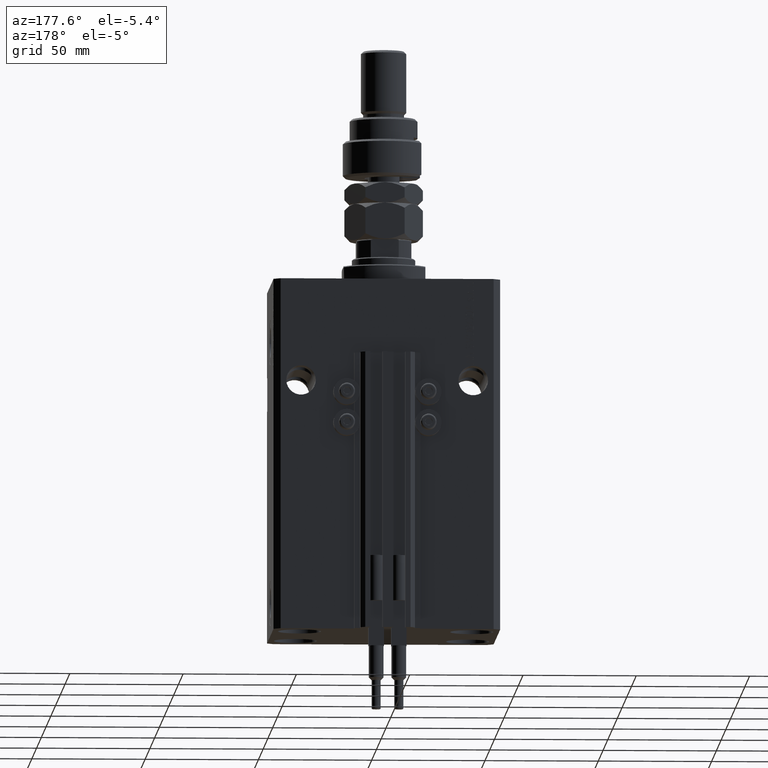
[diagram: clean part render]
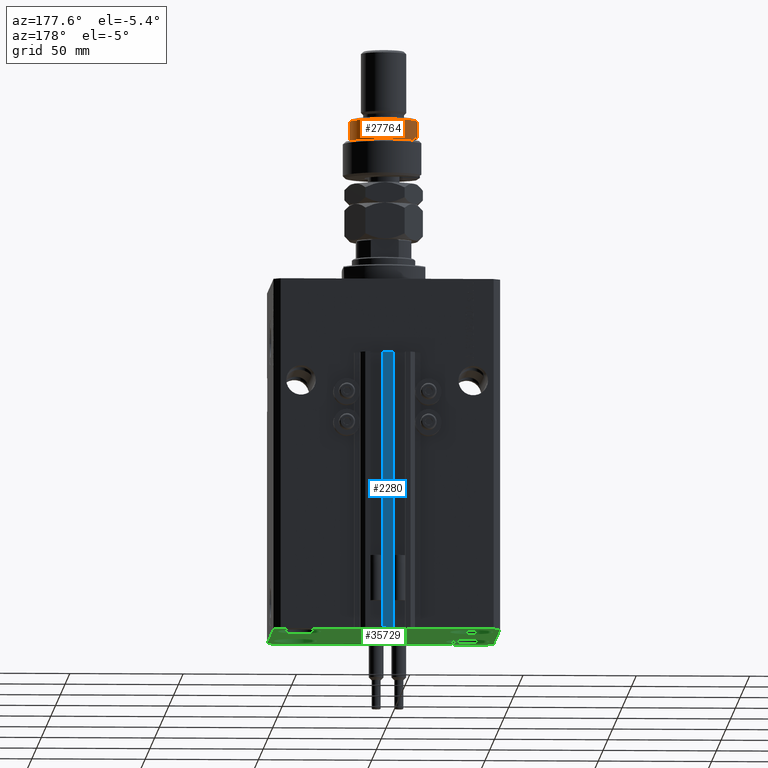
[diagram: same view with three faces highlighted in distinct colors, each labeled with its STEP entity id]
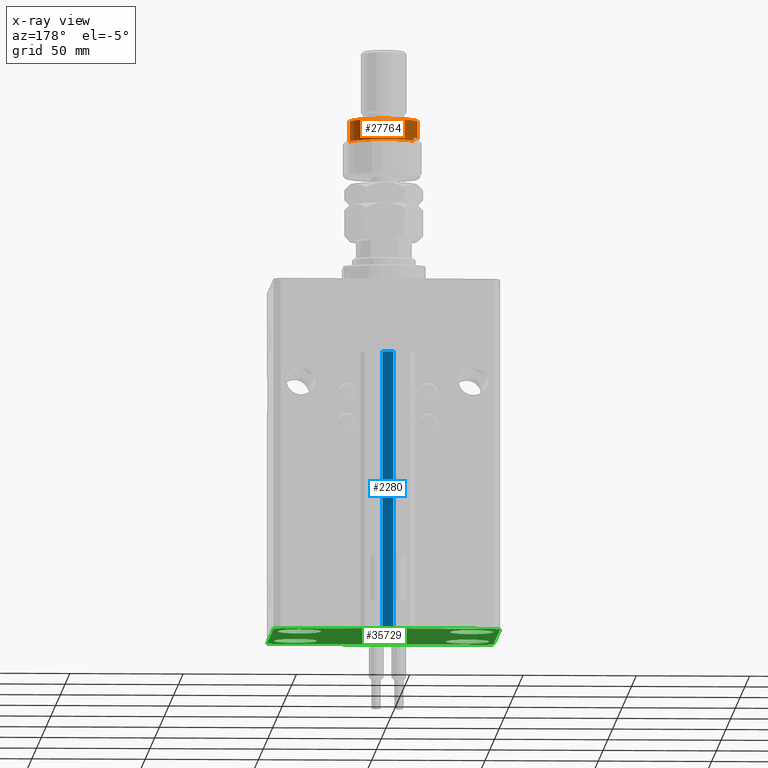
[diagram: x-ray of the same camera — body ghosted, the three highlighted faces saturated]
A machine part, auxiliary view with three faces highlighted in distinct colors.
The next image is the same camera in x-ray (body ghosted, the three faces saturated) — at least one of them is partly hidden behind the body in this view.
Their STEP definitions:

[orange] entity #27764 — the highlighted cylindrical surface (edge-blend (fillet) strip) has radius 15 mm, axis along (-0, -0, -1).
#346 = DIRECTION ( 'NONE',  ( -1.000000000000000000, 0.000000000000000000, 0.000000000000000000 ) ) ;
#483 = DIRECTION ( 'NONE',  ( -0.000000000000000000, -0.000000000000000000, -1.000000000000000000 ) ) ;
#1284 = CARTESIAN_POINT ( 'NONE',  ( -12.99038105676658006, 7.500000000000000000, 17.50000000000000000 ) ) ;
#2516 = LINE ( 'NONE', #33722, #23870 ) ;
#3872 = VERTEX_POINT ( 'NONE', #44724 ) ;
#4805 = DIRECTION ( 'NONE',  ( -0.000000000000000000, -0.000000000000000000, -1.000000000000000000 ) ) ;
#5315 = FACE_OUTER_BOUND ( 'NONE', #35118, .T. ) ;
#5394 = VERTEX_POINT ( 'NONE', #31712 ) ;
#6120 = EDGE_CURVE ( 'NONE', #3872, #5394, #2516, .T. ) ;
#9772 = CARTESIAN_POINT ( 'NONE',  ( 0.000000000000000000, 0.000000000000000000, 16.00000000000000000 ) ) ;
#10063 = CARTESIAN_POINT ( 'NONE',  ( 15.00000000000000000, 1.836970198721029589E-15, 16.00000000000000000 ) ) ;
#10752 = EDGE_CURVE ( 'NONE', #3872, #28986, #28939, .T. ) ;
#11365 = AXIS2_PLACEMENT_3D ( 'NONE', #30833, #20051, #11675 ) ;
#11675 = DIRECTION ( 'NONE',  ( 1.000000000000000000, 0.000000000000000000, 0.000000000000000000 ) ) ;
#11886 = ORIENTED_EDGE ( 'NONE', *, *, #46749, .T. ) ;
#13201 = DIRECTION ( 'NONE',  ( 1.000000000000000000, 0.000000000000000000, 0.000000000000000000 ) ) ;
#13914 = EDGE_CURVE ( 'NONE', #25998, #43163, #33245, .T. ) ;
#14204 = CIRCLE ( 'NONE', #50210, 15.00000000000000000 ) ;
#15678 = AXIS2_PLACEMENT_3D ( 'NONE', #9772, #25516, #13201 ) ;
#16603 = CARTESIAN_POINT ( 'NONE',  ( 0.000000000000000000, 0.000000000000000000, 26.00000000000000355 ) ) ;
#18259 = LINE ( 'NONE', #46317, #23260 ) ;
#19014 = CARTESIAN_POINT ( 'NONE',  ( 0.000000000000000000, 0.000000000000000000, 17.50000000000000000 ) ) ;
#20051 = DIRECTION ( 'NONE',  ( 0.000000000000000000, 0.000000000000000000, -1.000000000000000000 ) ) ;
#23260 = VECTOR ( 'NONE', #41343, 1000.000000000000000 ) ;
#23416 = VERTEX_POINT ( 'NONE', #1284 ) ;
#23870 = VECTOR ( 'NONE', #41849, 1000.000000000000000 ) ;
#25516 = DIRECTION ( 'NONE',  ( 0.000000000000000000, 0.000000000000000000, 1.000000000000000000 ) ) ;
#25998 = VERTEX_POINT ( 'NONE', #10063 ) ;
#27764 = ADVANCED_FACE ( 'NONE', ( #5315 ), #36263, .T. ) ;
#27904 = DIRECTION ( 'NONE',  ( 0.000000000000000000, 0.000000000000000000, -1.000000000000000000 ) ) ;
#28278 = CARTESIAN_POINT ( 'NONE',  ( 15.00000000000000000, 1.836970198721029589E-15, 26.00000000000000355 ) ) ;
#28939 = CIRCLE ( 'NONE', #11365, 15.00000000000000000 ) ;
#28986 = VERTEX_POINT ( 'NONE', #47698 ) ;
#30235 = ORIENTED_EDGE ( 'NONE', *, *, #47945, .F. ) ;
#30448 = EDGE_CURVE ( 'NONE', #43163, #23416, #18259, .T. ) ;
#30833 = CARTESIAN_POINT ( 'NONE',  ( 0.000000000000000000, 0.000000000000000000, 24.99999999999997868 ) ) ;
#31712 = CARTESIAN_POINT ( 'NONE',  ( -15.00000000000000000, 0.000000000000000000, 17.50000000000000000 ) ) ;
#33245 = CIRCLE ( 'NONE', #15678, 15.00000000000000000 ) ;
#33722 = CARTESIAN_POINT ( 'NONE',  ( -15.00000000000000000, 0.000000000000000000, 26.00000000000000355 ) ) ;
#35118 = EDGE_LOOP ( 'NONE', ( #48963, #11886, #36633, #47854, #30235, #47649 ) ) ;
#35762 = DIRECTION ( 'NONE',  ( -1.000000000000000000, 0.000000000000000000, 0.000000000000000000 ) ) ;
#36263 = CYLINDRICAL_SURFACE ( 'NONE', #41544, 15.00000000000000000 ) ;
#36417 = VECTOR ( 'NONE', #483, 1000.000000000000000 ) ;
#36633 = ORIENTED_EDGE ( 'NONE', *, *, #13914, .T. ) ;
#41343 = DIRECTION ( 'NONE',  ( 0.000000000000000000, 0.000000000000000000, 1.000000000000000000 ) ) ;
#41544 = AXIS2_PLACEMENT_3D ( 'NONE', #16603, #4805, #346 ) ;
#41849 = DIRECTION ( 'NONE',  ( -0.000000000000000000, -0.000000000000000000, -1.000000000000000000 ) ) ;
#43163 = VERTEX_POINT ( 'NONE', #47531 ) ;
#44724 = CARTESIAN_POINT ( 'NONE',  ( -15.00000000000000000, 0.000000000000000000, 24.99999999999997868 ) ) ;
#46317 = CARTESIAN_POINT ( 'NONE',  ( -12.99038105676658006, 7.500000000000000000, 26.00000000000000355 ) ) ;
#46749 = EDGE_CURVE ( 'NONE', #28986, #25998, #48204, .T. ) ;
#47531 = CARTESIAN_POINT ( 'NONE',  ( -12.99038105676658006, 7.500000000000000000, 16.00000000000000000 ) ) ;
#47649 = ORIENTED_EDGE ( 'NONE', *, *, #6120, .F. ) ;
#47698 = CARTESIAN_POINT ( 'NONE',  ( 15.00000000000000000, 1.836970198721029589E-15, 24.99999999999997868 ) ) ;
#47854 = ORIENTED_EDGE ( 'NONE', *, *, #30448, .T. ) ;
#47945 = EDGE_CURVE ( 'NONE', #5394, #23416, #14204, .T. ) ;
#48204 = LINE ( 'NONE', #28278, #36417 ) ;
#48963 = ORIENTED_EDGE ( 'NONE', *, *, #10752, .T. ) ;
#50210 = AXIS2_PLACEMENT_3D ( 'NONE', #19014, #27904, #35762 ) ;

[blue] entity #2280 — the highlighted planar face has unit normal (0, -1, 0).
#217 = VECTOR ( 'NONE', #3693, 1000.000000000000000 ) ;
#1138 = PLANE ( 'NONE',  #12827 ) ;
#2114 = VECTOR ( 'NONE', #10321, 1000.000000000000000 ) ;
#2280 = ADVANCED_FACE ( 'NONE', ( #49386 ), #1138, .F. ) ;
#2876 = VECTOR ( 'NONE', #15545, 1000.000000000000000 ) ;
#2965 = ORIENTED_EDGE ( 'NONE', *, *, #7192, .T. ) ;
#3693 = DIRECTION ( 'NONE',  ( 0.000000000000000000, 0.000000000000000000, 1.000000000000000000 ) ) ;
#4813 = ORIENTED_EDGE ( 'NONE', *, *, #5031, .T. ) ;
#5031 = EDGE_CURVE ( 'NONE', #11559, #12353, #39907, .T. ) ;
#6653 = CARTESIAN_POINT ( 'NONE',  ( -2.350000000000003642, 45.50000000000000711, -33.00000000000000000 ) ) ;
#7192 = EDGE_CURVE ( 'NONE', #12353, #51010, #26578, .T. ) ;
#10321 = DIRECTION ( 'NONE',  ( 1.000000000000000000, 0.000000000000000000, 0.000000000000000000 ) ) ;
#10383 = VERTEX_POINT ( 'NONE', #32181 ) ;
#10480 = CARTESIAN_POINT ( 'NONE',  ( 2.349999999999999645, 45.50000000000000711, -33.00000000000000000 ) ) ;
#11559 = VERTEX_POINT ( 'NONE', #44950 ) ;
#12353 = VERTEX_POINT ( 'NONE', #18544 ) ;
#12434 = CARTESIAN_POINT ( 'NONE',  ( -2.350000000000003642, 45.50000000000000711, -155.0000000000000000 ) ) ;
#12827 = AXIS2_PLACEMENT_3D ( 'NONE', #12434, #32608, #32869 ) ;
#15545 = DIRECTION ( 'NONE',  ( 0.000000000000000000, 0.000000000000000000, 1.000000000000000000 ) ) ;
#18544 = CARTESIAN_POINT ( 'NONE',  ( -2.350000000000003642, 45.50000000000000711, -33.00000000000000000 ) ) ;
#22478 = LINE ( 'NONE', #26151, #26724 ) ;
#26151 = CARTESIAN_POINT ( 'NONE',  ( -2.350000000000003642, 45.50000000000000711, -155.0000000000000000 ) ) ;
#26578 = LINE ( 'NONE', #6653, #2114 ) ;
#26724 = VECTOR ( 'NONE', #46588, 1000.000000000000000 ) ;
#32181 = CARTESIAN_POINT ( 'NONE',  ( 2.349999999999999645, 45.50000000000000711, -155.0000000000000000 ) ) ;
#32608 = DIRECTION ( 'NONE',  ( 0.000000000000000000, -1.000000000000000000, 0.000000000000000000 ) ) ;
#32869 = DIRECTION ( 'NONE',  ( 0.000000000000000000, -0.000000000000000000, -1.000000000000000000 ) ) ;
#33253 = EDGE_CURVE ( 'NONE', #11559, #10383, #22478, .T. ) ;
#35960 = CARTESIAN_POINT ( 'NONE',  ( -2.350000000000003642, 45.50000000000000711, -155.0000000000000000 ) ) ;
#39907 = LINE ( 'NONE', #35960, #2876 ) ;
#43352 = EDGE_CURVE ( 'NONE', #10383, #51010, #43534, .T. ) ;
#43534 = LINE ( 'NONE', #44565, #217 ) ;
#44565 = CARTESIAN_POINT ( 'NONE',  ( 2.349999999999999645, 45.50000000000000711, -155.0000000000000000 ) ) ;
#44950 = CARTESIAN_POINT ( 'NONE',  ( -2.350000000000003642, 45.50000000000000711, -155.0000000000000000 ) ) ;
#46588 = DIRECTION ( 'NONE',  ( 1.000000000000000000, 0.000000000000000000, 0.000000000000000000 ) ) ;
#48931 = ORIENTED_EDGE ( 'NONE', *, *, #33253, .F. ) ;
#49386 = FACE_OUTER_BOUND ( 'NONE', #49933, .T. ) ;
#49570 = ORIENTED_EDGE ( 'NONE', *, *, #43352, .F. ) ;
#49933 = EDGE_LOOP ( 'NONE', ( #2965, #49570, #48931, #4813 ) ) ;
#51010 = VERTEX_POINT ( 'NONE', #10480 ) ;

[green] entity #35729 — the highlighted planar face has unit normal (0, 0, 1).
#248 = CIRCLE ( 'NONE', #36242, 9.500000000000001776 ) ;
#529 = CARTESIAN_POINT ( 'NONE',  ( -47.00000000000001421, 37.50000000000000000, -155.0000000000000000 ) ) ;
#696 = ORIENTED_EDGE ( 'NONE', *, *, #28960, .T. ) ;
#735 = LINE ( 'NONE', #13585, #23960 ) ;
#920 = CIRCLE ( 'NONE', #36931, 9.500000000000001776 ) ;
#1127 = ORIENTED_EDGE ( 'NONE', *, *, #2640, .T. ) ;
#1382 = DIRECTION ( 'NONE',  ( 0.7071067811865483499, 0.7071067811865466846, 0.000000000000000000 ) ) ;
#1840 = VERTEX_POINT ( 'NONE', #20107 ) ;
#2631 = VECTOR ( 'NONE', #1382, 1000.000000000000000 ) ;
#2640 = EDGE_CURVE ( 'NONE', #36526, #47503, #248, .T. ) ;
#2663 = CARTESIAN_POINT ( 'NONE',  ( -47.50000000000000711, 22.50000000000000000, -155.0000000000000000 ) ) ;
#2719 = CARTESIAN_POINT ( 'NONE',  ( 47.00000000000056843, 37.49999999999999289, -155.0000000000000000 ) ) ;
#2890 = ORIENTED_EDGE ( 'NONE', *, *, #27782, .F. ) ;
#2893 = DIRECTION ( 'NONE',  ( -0.000000000000000000, -0.000000000000000000, 1.000000000000000000 ) ) ;
#3088 = CIRCLE ( 'NONE', #20704, 9.500000000000001776 ) ;
#3404 = DIRECTION ( 'NONE',  ( -0.7071067811865361374, 0.7071067811865588970, 0.000000000000000000 ) ) ;
#3567 = FACE_BOUND ( 'NONE', #16726, .T. ) ;
#3874 = DIRECTION ( 'NONE',  ( 1.000000000000000000, 0.000000000000000000, 0.000000000000000000 ) ) ;
#3990 = EDGE_LOOP ( 'NONE', ( #6063, #47883 ) ) ;
#4102 = DIRECTION ( 'NONE',  ( 1.000000000000000000, -1.476360405086644309E-16, 0.000000000000000000 ) ) ;
#4883 = VECTOR ( 'NONE', #4102, 1000.000000000000000 ) ;
#5085 = CIRCLE ( 'NONE', #13478, 9.500000000000001776 ) ;
#5633 = ORIENTED_EDGE ( 'NONE', *, *, #8929, .F. ) ;
#5951 = CARTESIAN_POINT ( 'NONE',  ( 28.50000000000000355, -22.50000000000000000, -155.0000000000000000 ) ) ;
#6063 = ORIENTED_EDGE ( 'NONE', *, *, #37173, .T. ) ;
#6788 = VERTEX_POINT ( 'NONE', #5951 ) ;
#6893 = CARTESIAN_POINT ( 'NONE',  ( -38.00000000000000711, 22.50000000000000000, -155.0000000000000000 ) ) ;
#7670 = DIRECTION ( 'NONE',  ( 1.000000000000000000, 0.000000000000000000, 0.000000000000000000 ) ) ;
#7741 = DIRECTION ( 'NONE',  ( 1.000000000000000000, 0.000000000000000000, 0.000000000000000000 ) ) ;
#8136 = ORIENTED_EDGE ( 'NONE', *, *, #10567, .F. ) ;
#8172 = CARTESIAN_POINT ( 'NONE',  ( -38.00000000000000711, 22.50000000000000000, -155.0000000000000000 ) ) ;
#8929 = EDGE_CURVE ( 'NONE', #34600, #29745, #21895, .T. ) ;
#9635 = VECTOR ( 'NONE', #36892, 1000.000000000000114 ) ;
#10567 = EDGE_CURVE ( 'NONE', #29745, #17352, #16970, .T. ) ;
#10919 = PLANE ( 'NONE',  #13439 ) ;
#12358 = CARTESIAN_POINT ( 'NONE',  ( -28.50000000000000355, 22.50000000000000000, -155.0000000000000000 ) ) ;
#12591 = DIRECTION ( 'NONE',  ( -0.7071067811865483499, -0.7071067811865466846, 0.000000000000000000 ) ) ;
#13439 = AXIS2_PLACEMENT_3D ( 'NONE', #42385, #39481, #22728 ) ;
#13478 = AXIS2_PLACEMENT_3D ( 'NONE', #48778, #17312, #29887 ) ;
#13515 = CARTESIAN_POINT ( 'NONE',  ( -50.00000000000001421, 34.50000000000000000, -155.0000000000000000 ) ) ;
#13532 = EDGE_LOOP ( 'NONE', ( #29641, #696 ) ) ;
#13585 = CARTESIAN_POINT ( 'NONE',  ( 50.00000000000000000, -34.50000000000000711, -155.0000000000000000 ) ) ;
#13652 = ORIENTED_EDGE ( 'NONE', *, *, #16483, .F. ) ;
#14733 = ORIENTED_EDGE ( 'NONE', *, *, #48294, .T. ) ;
#15262 = CARTESIAN_POINT ( 'NONE',  ( 47.50000000000000711, 22.50000000000001421, -155.0000000000000000 ) ) ;
#15919 = CARTESIAN_POINT ( 'NONE',  ( 38.00000000000000711, 22.50000000000001421, -155.0000000000000000 ) ) ;
#16483 = EDGE_CURVE ( 'NONE', #17352, #43303, #20615, .T. ) ;
#16726 = EDGE_LOOP ( 'NONE', ( #17408, #36494 ) ) ;
#16970 = LINE ( 'NONE', #24846, #9635 ) ;
#17312 = DIRECTION ( 'NONE',  ( -0.000000000000000000, -0.000000000000000000, 1.000000000000000000 ) ) ;
#17352 = VERTEX_POINT ( 'NONE', #45568 ) ;
#17408 = ORIENTED_EDGE ( 'NONE', *, *, #37397, .T. ) ;
#17901 = CARTESIAN_POINT ( 'NONE',  ( 47.00000000000000000, -37.50000000000000711, -155.0000000000000000 ) ) ;
#18268 = VECTOR ( 'NONE', #12591, 1000.000000000000000 ) ;
#18711 = EDGE_LOOP ( 'NONE', ( #1127, #14733 ) ) ;
#18878 = CARTESIAN_POINT ( 'NONE',  ( 50.00000000000051870, 34.49999999999995026, -155.0000000000000000 ) ) ;
#18956 = DIRECTION ( 'NONE',  ( -0.000000000000000000, -0.000000000000000000, 1.000000000000000000 ) ) ;
#19144 = DIRECTION ( 'NONE',  ( 1.000000000000000000, 0.000000000000000000, 0.000000000000000000 ) ) ;
#19385 = AXIS2_PLACEMENT_3D ( 'NONE', #19795, #43652, #7741 ) ;
#19795 = CARTESIAN_POINT ( 'NONE',  ( 38.00000000000000711, -22.50000000000000000, -155.0000000000000000 ) ) ;
#20107 = CARTESIAN_POINT ( 'NONE',  ( -28.50000000000000355, -22.50000000000000000, -155.0000000000000000 ) ) ;
#20615 = LINE ( 'NONE', #36600, #4883 ) ;
#20704 = AXIS2_PLACEMENT_3D ( 'NONE', #51636, #2893, #19144 ) ;
#21607 = CARTESIAN_POINT ( 'NONE',  ( -50.00000000000000000, -34.50000000000000000, -155.0000000000000000 ) ) ;
#21765 = CARTESIAN_POINT ( 'NONE',  ( 28.50000000000000355, 22.50000000000001421, -155.0000000000000000 ) ) ;
#21895 = LINE ( 'NONE', #13515, #45600 ) ;
#22091 = VERTEX_POINT ( 'NONE', #42289 ) ;
#22728 = DIRECTION ( 'NONE',  ( 1.000000000000000000, 0.000000000000000000, -0.000000000000000000 ) ) ;
#23479 = ORIENTED_EDGE ( 'NONE', *, *, #31187, .F. ) ;
#23960 = VECTOR ( 'NONE', #48972, 1000.000000000000000 ) ;
#24511 = ORIENTED_EDGE ( 'NONE', *, *, #35030, .F. ) ;
#24846 = CARTESIAN_POINT ( 'NONE',  ( -50.00000000000000000, -34.50000000000000000, -155.0000000000000000 ) ) ;
#24914 = CARTESIAN_POINT ( 'NONE',  ( -47.50000000000000711, -22.50000000000000000, -155.0000000000000000 ) ) ;
#26400 = FACE_BOUND ( 'NONE', #3990, .T. ) ;
#26533 = CARTESIAN_POINT ( 'NONE',  ( 38.00000000000000711, 22.50000000000001421, -155.0000000000000000 ) ) ;
#26807 = AXIS2_PLACEMENT_3D ( 'NONE', #8172, #49055, #32538 ) ;
#27041 = CARTESIAN_POINT ( 'NONE',  ( 47.00000000000000000, -37.50000000000000711, -155.0000000000000000 ) ) ;
#27195 = DIRECTION ( 'NONE',  ( -0.000000000000000000, -0.000000000000000000, 1.000000000000000000 ) ) ;
#27328 = EDGE_CURVE ( 'NONE', #46038, #48654, #735, .T. ) ;
#27334 = VECTOR ( 'NONE', #37046, 1000.000000000000000 ) ;
#27782 = EDGE_CURVE ( 'NONE', #37926, #50846, #44386, .T. ) ;
#28186 = EDGE_CURVE ( 'NONE', #37199, #46556, #43271, .T. ) ;
#28503 = CARTESIAN_POINT ( 'NONE',  ( -38.00000000000000711, -22.50000000000000000, -155.0000000000000000 ) ) ;
#28960 = EDGE_CURVE ( 'NONE', #22091, #6788, #3088, .T. ) ;
#29641 = ORIENTED_EDGE ( 'NONE', *, *, #41839, .T. ) ;
#29745 = VERTEX_POINT ( 'NONE', #21607 ) ;
#29887 = DIRECTION ( 'NONE',  ( 1.000000000000000000, 0.000000000000000000, 0.000000000000000000 ) ) ;
#30977 = DIRECTION ( 'NONE',  ( 1.000000000000000000, 0.000000000000000000, 0.000000000000000000 ) ) ;
#31066 = AXIS2_PLACEMENT_3D ( 'NONE', #26533, #43293, #30977 ) ;
#31187 = EDGE_CURVE ( 'NONE', #50846, #34600, #44049, .T. ) ;
#32538 = DIRECTION ( 'NONE',  ( 1.000000000000000000, 0.000000000000000000, 0.000000000000000000 ) ) ;
#33110 = LINE ( 'NONE', #17901, #2631 ) ;
#34460 = CIRCLE ( 'NONE', #19385, 9.500000000000001776 ) ;
#34600 = VERTEX_POINT ( 'NONE', #49110 ) ;
#34942 = CARTESIAN_POINT ( 'NONE',  ( 50.00000000000000000, -34.50000000000000711, -155.0000000000000000 ) ) ;
#35030 = EDGE_CURVE ( 'NONE', #48654, #37926, #46925, .T. ) ;
#35729 = ADVANCED_FACE ( 'NONE', ( #3567, #43409, #26400, #51033, #47605 ), #10919, .F. ) ;
#35990 = VECTOR ( 'NONE', #3404, 1000.000000000000114 ) ;
#36242 = AXIS2_PLACEMENT_3D ( 'NONE', #6893, #18956, #7670 ) ;
#36494 = ORIENTED_EDGE ( 'NONE', *, *, #41540, .T. ) ;
#36526 = VERTEX_POINT ( 'NONE', #2663 ) ;
#36600 = CARTESIAN_POINT ( 'NONE',  ( -47.00000000000000000, -37.49999999999999289, -155.0000000000000000 ) ) ;
#36892 = DIRECTION ( 'NONE',  ( 0.7071067811865491270, -0.7071067811865459074, 0.000000000000000000 ) ) ;
#36931 = AXIS2_PLACEMENT_3D ( 'NONE', #28503, #39786, #3874 ) ;
#37046 = DIRECTION ( 'NONE',  ( -1.000000000000000000, 7.381802025433175941E-17, 0.000000000000000000 ) ) ;
#37173 = EDGE_CURVE ( 'NONE', #46556, #37199, #51168, .T. ) ;
#37199 = VERTEX_POINT ( 'NONE', #15262 ) ;
#37397 = EDGE_CURVE ( 'NONE', #43496, #1840, #5085, .T. ) ;
#37889 = DIRECTION ( 'NONE',  ( 2.011273595335428326E-16, -1.000000000000000000, 0.000000000000000000 ) ) ;
#37926 = VERTEX_POINT ( 'NONE', #2719 ) ;
#39481 = DIRECTION ( 'NONE',  ( 0.000000000000000000, 0.000000000000000000, 1.000000000000000000 ) ) ;
#39786 = DIRECTION ( 'NONE',  ( -0.000000000000000000, -0.000000000000000000, 1.000000000000000000 ) ) ;
#40141 = CARTESIAN_POINT ( 'NONE',  ( -47.00000000000001421, 37.50000000000000000, -155.0000000000000000 ) ) ;
#40611 = CARTESIAN_POINT ( 'NONE',  ( 50.00000000000051870, 34.49999999999995026, -155.0000000000000000 ) ) ;
#41231 = CARTESIAN_POINT ( 'NONE',  ( 47.00000000000056843, 37.49999999999999289, -155.0000000000000000 ) ) ;
#41540 = EDGE_CURVE ( 'NONE', #1840, #43496, #920, .T. ) ;
#41839 = EDGE_CURVE ( 'NONE', #6788, #22091, #34460, .T. ) ;
#42289 = CARTESIAN_POINT ( 'NONE',  ( 47.50000000000000711, -22.50000000000000000, -155.0000000000000000 ) ) ;
#42385 = CARTESIAN_POINT ( 'NONE',  ( 0.000000000000000000, 0.000000000000000000, -155.0000000000000000 ) ) ;
#42704 = CIRCLE ( 'NONE', #26807, 9.500000000000001776 ) ;
#43183 = DIRECTION ( 'NONE',  ( 1.000000000000000000, 0.000000000000000000, 0.000000000000000000 ) ) ;
#43271 = CIRCLE ( 'NONE', #49982, 9.500000000000001776 ) ;
#43293 = DIRECTION ( 'NONE',  ( -0.000000000000000000, -0.000000000000000000, 1.000000000000000000 ) ) ;
#43303 = VERTEX_POINT ( 'NONE', #27041 ) ;
#43409 = FACE_BOUND ( 'NONE', #13532, .T. ) ;
#43496 = VERTEX_POINT ( 'NONE', #24914 ) ;
#43652 = DIRECTION ( 'NONE',  ( -0.000000000000000000, -0.000000000000000000, 1.000000000000000000 ) ) ;
#44049 = LINE ( 'NONE', #529, #18268 ) ;
#44386 = LINE ( 'NONE', #41231, #27334 ) ;
#45568 = CARTESIAN_POINT ( 'NONE',  ( -47.00000000000000000, -37.49999999999999289, -155.0000000000000000 ) ) ;
#45600 = VECTOR ( 'NONE', #37889, 1000.000000000000000 ) ;
#46038 = VERTEX_POINT ( 'NONE', #34942 ) ;
#46556 = VERTEX_POINT ( 'NONE', #21765 ) ;
#46925 = LINE ( 'NONE', #18878, #35990 ) ;
#47503 = VERTEX_POINT ( 'NONE', #12358 ) ;
#47605 = FACE_OUTER_BOUND ( 'NONE', #48393, .T. ) ;
#47883 = ORIENTED_EDGE ( 'NONE', *, *, #28186, .T. ) ;
#48294 = EDGE_CURVE ( 'NONE', #47503, #36526, #42704, .T. ) ;
#48393 = EDGE_LOOP ( 'NONE', ( #2890, #24511, #49896, #49749, #13652, #8136, #5633, #23479 ) ) ;
#48654 = VERTEX_POINT ( 'NONE', #40611 ) ;
#48778 = CARTESIAN_POINT ( 'NONE',  ( -38.00000000000000711, -22.50000000000000000, -155.0000000000000000 ) ) ;
#48972 = DIRECTION ( 'NONE',  ( 7.441712302741091634E-15, 1.000000000000000000, 0.000000000000000000 ) ) ;
#49055 = DIRECTION ( 'NONE',  ( -0.000000000000000000, -0.000000000000000000, 1.000000000000000000 ) ) ;
#49110 = CARTESIAN_POINT ( 'NONE',  ( -50.00000000000001421, 34.50000000000000000, -155.0000000000000000 ) ) ;
#49749 = ORIENTED_EDGE ( 'NONE', *, *, #51782, .F. ) ;
#49896 = ORIENTED_EDGE ( 'NONE', *, *, #27328, .F. ) ;
#49982 = AXIS2_PLACEMENT_3D ( 'NONE', #15919, #27195, #43183 ) ;
#50846 = VERTEX_POINT ( 'NONE', #40141 ) ;
#51033 = FACE_BOUND ( 'NONE', #18711, .T. ) ;
#51168 = CIRCLE ( 'NONE', #31066, 9.500000000000001776 ) ;
#51636 = CARTESIAN_POINT ( 'NONE',  ( 38.00000000000000711, -22.50000000000000000, -155.0000000000000000 ) ) ;
#51782 = EDGE_CURVE ( 'NONE', #43303, #46038, #33110, .T. ) ;